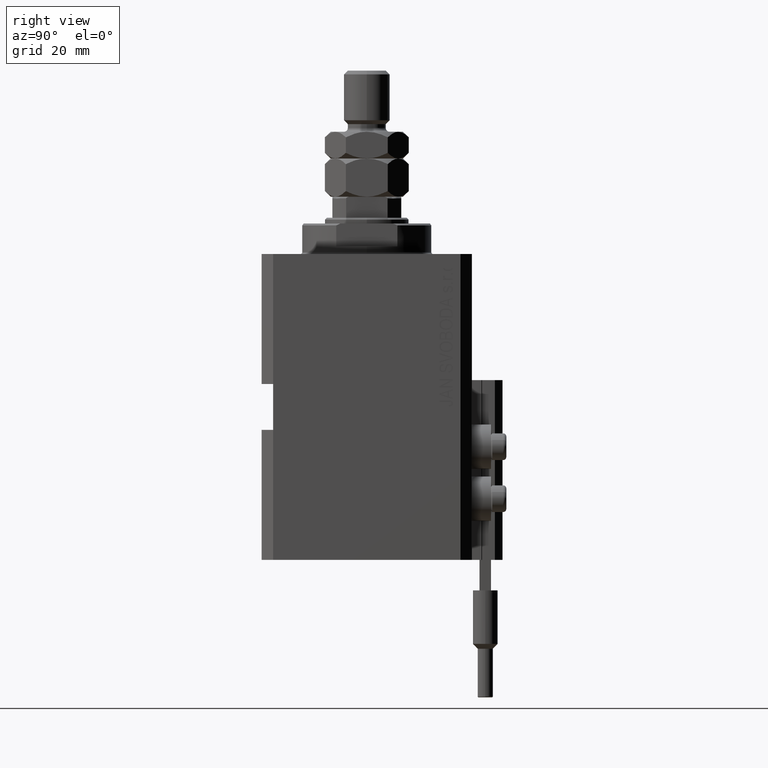
[diagram: clean part render]
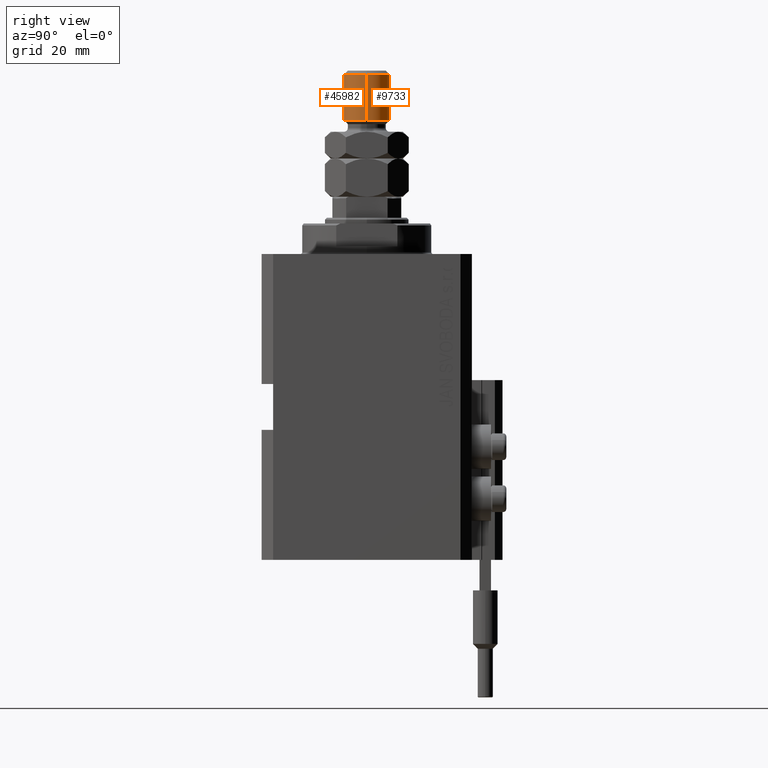
[diagram: same view with one multi-face feature highlighted, each face labeled with its STEP entity id]
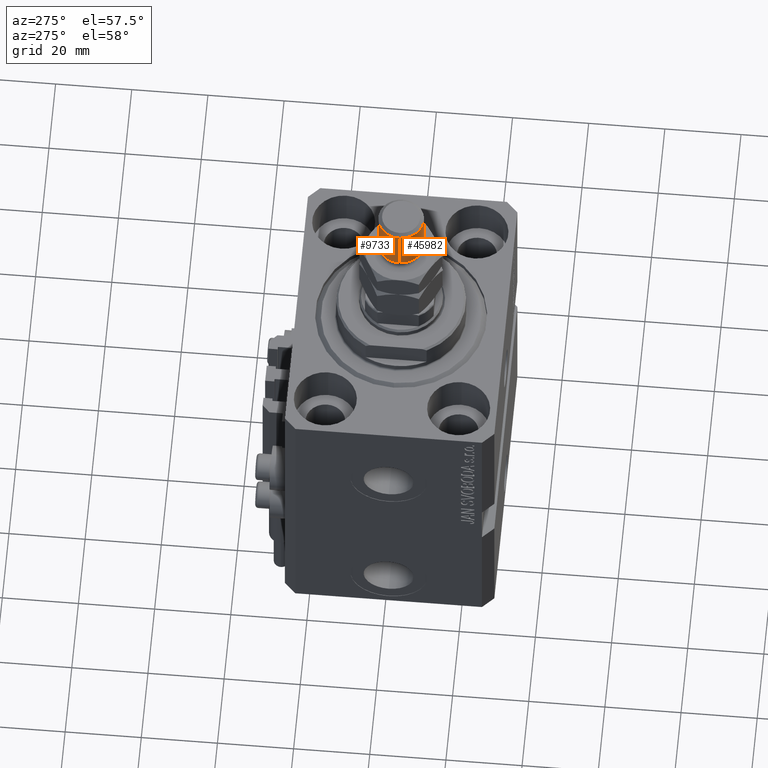
[diagram: same view with one multi-face feature highlighted, each face labeled with its STEP entity id]
A machine part, right view. The highlighted faces form ONE feature: a constant-radius fillet chain: 2 tangent blend faces with common blend radius 6 mm. The faces share edges in the B-rep.
A second angle (auxiliary view) of the same feature is appended — it is thin or edge-on in the first view.
Their STEP definitions:
[1] entity #45982 (Cylinder):
#1582 = EDGE_LOOP ( 'NONE', ( #43971, #32143, #33758, #5552 ) ) ;
#5552 = ORIENTED_EDGE ( 'NONE', *, *, #42810, .T. ) ;
#7730 = VECTOR ( 'NONE', #22408, 1000.000000000000000 ) ;
#9142 = CYLINDRICAL_SURFACE ( 'NONE', #33465, 6.000000000000000888 ) ;
#11134 = DIRECTION ( 'NONE',  ( 1.000000000000000000, 0.000000000000000000, 0.000000000000000000 ) ) ;
#14952 = LINE ( 'NONE', #26624, #7730 ) ;
#15045 = CARTESIAN_POINT ( 'NONE',  ( 6.000000000000000888, 7.347880794884120722E-16, 33.00000000000000000 ) ) ;
#15485 = VERTEX_POINT ( 'NONE', #41939 ) ;
#18929 = CARTESIAN_POINT ( 'NONE',  ( 6.000000000000000888, 7.347880794884120722E-16, 20.00000000000000711 ) ) ;
#20101 = CARTESIAN_POINT ( 'NONE',  ( 0.000000000000000000, 0.000000000000000000, 33.00000000000000000 ) ) ;
#22408 = DIRECTION ( 'NONE',  ( -0.000000000000000000, -0.000000000000000000, -1.000000000000000000 ) ) ;
#23571 = FACE_OUTER_BOUND ( 'NONE', #1582, .T. ) ;
#23954 = AXIS2_PLACEMENT_3D ( 'NONE', #36183, #32958, #48089 ) ;
#26028 = VERTEX_POINT ( 'NONE', #18929 ) ;
#26624 = CARTESIAN_POINT ( 'NONE',  ( -6.000000000000000888, 0.000000000000000000, 33.00000000000000000 ) ) ;
#27227 = LINE ( 'NONE', #15045, #36371 ) ;
#29547 = DIRECTION ( 'NONE',  ( -0.000000000000000000, -0.000000000000000000, 1.000000000000000000 ) ) ;
#30051 = CARTESIAN_POINT ( 'NONE',  ( 0.000000000000000000, 0.000000000000000000, 20.00000000000000711 ) ) ;
#32143 = ORIENTED_EDGE ( 'NONE', *, *, #47249, .T. ) ;
#32958 = DIRECTION ( 'NONE',  ( 0.000000000000000000, 0.000000000000000000, -1.000000000000000000 ) ) ;
#33420 = EDGE_CURVE ( 'NONE', #15485, #44412, #14952, .T. ) ;
#33465 = AXIS2_PLACEMENT_3D ( 'NONE', #20101, #35279, #43207 ) ;
#33758 = ORIENTED_EDGE ( 'NONE', *, *, #33420, .T. ) ;
#34934 = AXIS2_PLACEMENT_3D ( 'NONE', #30051, #29547, #11134 ) ;
#35279 = DIRECTION ( 'NONE',  ( -0.000000000000000000, -0.000000000000000000, -1.000000000000000000 ) ) ;
#36183 = CARTESIAN_POINT ( 'NONE',  ( 0.000000000000000000, 0.000000000000000000, 32.00000000000000000 ) ) ;
#36370 = CARTESIAN_POINT ( 'NONE',  ( 6.000000000000000888, 7.347880794884120722E-16, 32.00000000000000000 ) ) ;
#36371 = VECTOR ( 'NONE', #42387, 1000.000000000000000 ) ;
#37468 = CIRCLE ( 'NONE', #23954, 6.000000000000000888 ) ;
#38477 = EDGE_CURVE ( 'NONE', #47460, #26028, #27227, .T. ) ;
#41048 = CARTESIAN_POINT ( 'NONE',  ( -6.000000000000000888, 0.000000000000000000, 20.00000000000000711 ) ) ;
#41939 = CARTESIAN_POINT ( 'NONE',  ( -6.000000000000000888, 0.000000000000000000, 32.00000000000000000 ) ) ;
#42081 = CIRCLE ( 'NONE', #34934, 6.000000000000000888 ) ;
#42387 = DIRECTION ( 'NONE',  ( -0.000000000000000000, -0.000000000000000000, -1.000000000000000000 ) ) ;
#42810 = EDGE_CURVE ( 'NONE', #44412, #26028, #42081, .T. ) ;
#43207 = DIRECTION ( 'NONE',  ( -1.000000000000000000, 0.000000000000000000, 0.000000000000000000 ) ) ;
#43971 = ORIENTED_EDGE ( 'NONE', *, *, #38477, .F. ) ;
#44412 = VERTEX_POINT ( 'NONE', #41048 ) ;
#45982 = ADVANCED_FACE ( 'NONE', ( #23571 ), #9142, .T. ) ;
#47249 = EDGE_CURVE ( 'NONE', #47460, #15485, #37468, .T. ) ;
#47460 = VERTEX_POINT ( 'NONE', #36370 ) ;
#48089 = DIRECTION ( 'NONE',  ( 1.000000000000000000, 0.000000000000000000, 0.000000000000000000 ) ) ;
[2] entity #9733 (Cylinder):
#5967 = DIRECTION ( 'NONE',  ( 1.000000000000000000, 0.000000000000000000, 0.000000000000000000 ) ) ;
#7730 = VECTOR ( 'NONE', #22408, 1000.000000000000000 ) ;
#9733 = ADVANCED_FACE ( 'NONE', ( #24570 ), #21802, .T. ) ;
#10426 = EDGE_CURVE ( 'NONE', #15485, #47460, #45861, .T. ) ;
#13002 = EDGE_CURVE ( 'NONE', #26028, #44412, #39487, .T. ) ;
#13686 = DIRECTION ( 'NONE',  ( -0.000000000000000000, -0.000000000000000000, 1.000000000000000000 ) ) ;
#13947 = EDGE_LOOP ( 'NONE', ( #24691, #18365, #22849, #35867 ) ) ;
#14881 = AXIS2_PLACEMENT_3D ( 'NONE', #48154, #24815, #47430 ) ;
#14952 = LINE ( 'NONE', #26624, #7730 ) ;
#15045 = CARTESIAN_POINT ( 'NONE',  ( 6.000000000000000888, 7.347880794884120722E-16, 33.00000000000000000 ) ) ;
#15485 = VERTEX_POINT ( 'NONE', #41939 ) ;
#18365 = ORIENTED_EDGE ( 'NONE', *, *, #38477, .T. ) ;
#18929 = CARTESIAN_POINT ( 'NONE',  ( 6.000000000000000888, 7.347880794884120722E-16, 20.00000000000000711 ) ) ;
#21802 = CYLINDRICAL_SURFACE ( 'NONE', #14881, 6.000000000000000888 ) ;
#22408 = DIRECTION ( 'NONE',  ( -0.000000000000000000, -0.000000000000000000, -1.000000000000000000 ) ) ;
#22849 = ORIENTED_EDGE ( 'NONE', *, *, #13002, .T. ) ;
#23164 = CARTESIAN_POINT ( 'NONE',  ( 0.000000000000000000, 0.000000000000000000, 32.00000000000000000 ) ) ;
#24570 = FACE_OUTER_BOUND ( 'NONE', #13947, .T. ) ;
#24691 = ORIENTED_EDGE ( 'NONE', *, *, #10426, .T. ) ;
#24815 = DIRECTION ( 'NONE',  ( -0.000000000000000000, -0.000000000000000000, -1.000000000000000000 ) ) ;
#26028 = VERTEX_POINT ( 'NONE', #18929 ) ;
#26624 = CARTESIAN_POINT ( 'NONE',  ( -6.000000000000000888, 0.000000000000000000, 33.00000000000000000 ) ) ;
#27227 = LINE ( 'NONE', #15045, #36371 ) ;
#31165 = DIRECTION ( 'NONE',  ( 0.000000000000000000, 0.000000000000000000, -1.000000000000000000 ) ) ;
#33420 = EDGE_CURVE ( 'NONE', #15485, #44412, #14952, .T. ) ;
#35867 = ORIENTED_EDGE ( 'NONE', *, *, #33420, .F. ) ;
#36370 = CARTESIAN_POINT ( 'NONE',  ( 6.000000000000000888, 7.347880794884120722E-16, 32.00000000000000000 ) ) ;
#36371 = VECTOR ( 'NONE', #42387, 1000.000000000000000 ) ;
#38477 = EDGE_CURVE ( 'NONE', #47460, #26028, #27227, .T. ) ;
#39487 = CIRCLE ( 'NONE', #45825, 6.000000000000000888 ) ;
#41048 = CARTESIAN_POINT ( 'NONE',  ( -6.000000000000000888, 0.000000000000000000, 20.00000000000000711 ) ) ;
#41927 = AXIS2_PLACEMENT_3D ( 'NONE', #23164, #31165, #45790 ) ;
#41939 = CARTESIAN_POINT ( 'NONE',  ( -6.000000000000000888, 0.000000000000000000, 32.00000000000000000 ) ) ;
#42387 = DIRECTION ( 'NONE',  ( -0.000000000000000000, -0.000000000000000000, -1.000000000000000000 ) ) ;
#44412 = VERTEX_POINT ( 'NONE', #41048 ) ;
#44507 = CARTESIAN_POINT ( 'NONE',  ( 0.000000000000000000, 0.000000000000000000, 20.00000000000000711 ) ) ;
#45790 = DIRECTION ( 'NONE',  ( 1.000000000000000000, 0.000000000000000000, 0.000000000000000000 ) ) ;
#45825 = AXIS2_PLACEMENT_3D ( 'NONE', #44507, #13686, #5967 ) ;
#45861 = CIRCLE ( 'NONE', #41927, 6.000000000000000888 ) ;
#47430 = DIRECTION ( 'NONE',  ( -1.000000000000000000, 0.000000000000000000, 0.000000000000000000 ) ) ;
#47460 = VERTEX_POINT ( 'NONE', #36370 ) ;
#48154 = CARTESIAN_POINT ( 'NONE',  ( 0.000000000000000000, 0.000000000000000000, 33.00000000000000000 ) ) ;